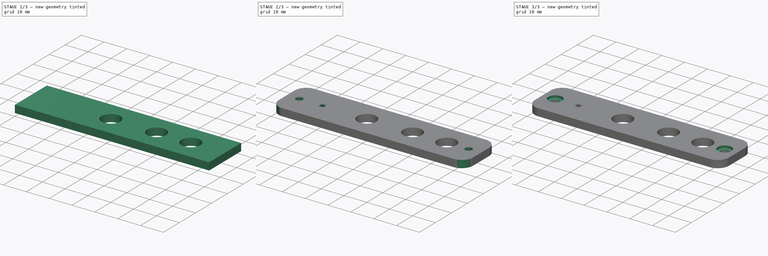
[diagram: build sequence overview — one tinted view per stage of 3, left to right]
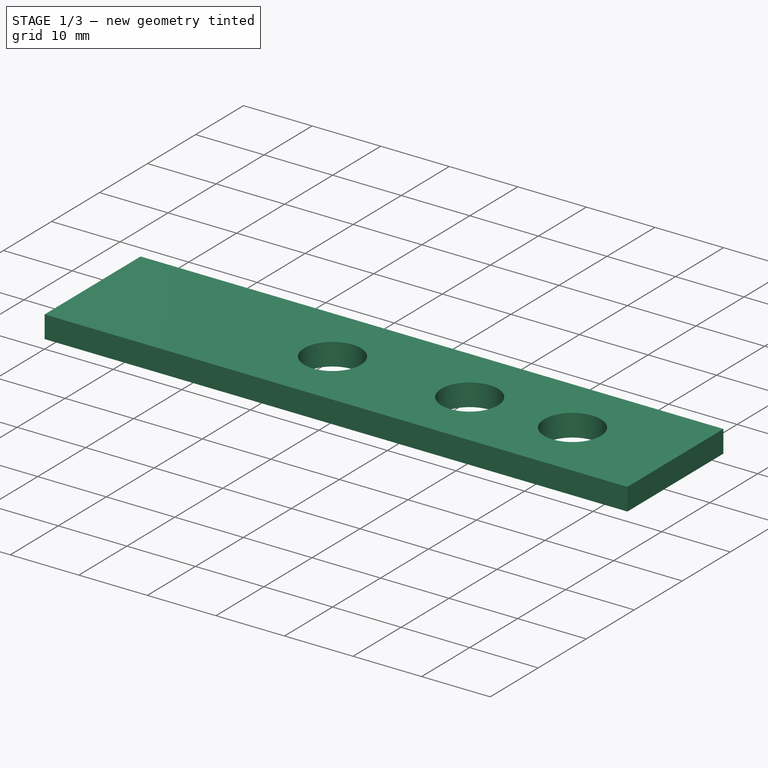
[diagram: stage 1 of 3 — iso view after this stage's code; geometry added in this stage tinted green]
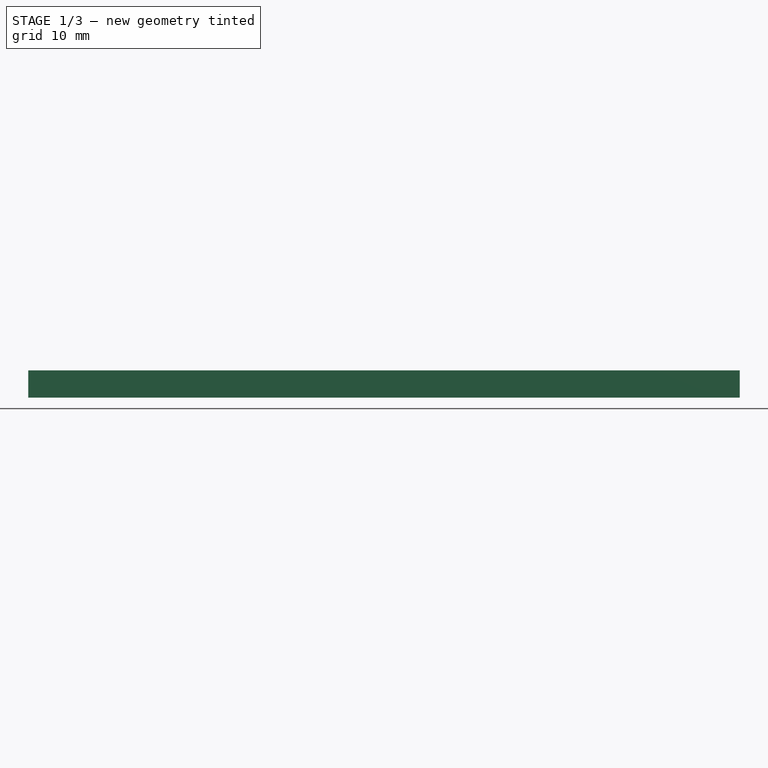
[diagram: stage 1 of 3 — front view after this stage's code; geometry added in this stage tinted green]
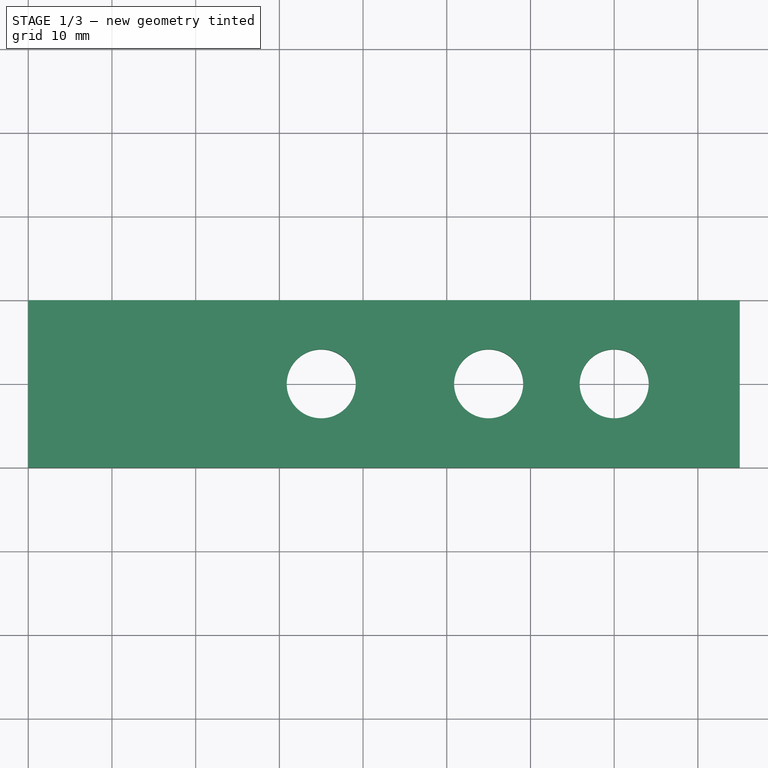
[diagram: stage 1 of 3 — top view after this stage's code; geometry added in this stage tinted green]
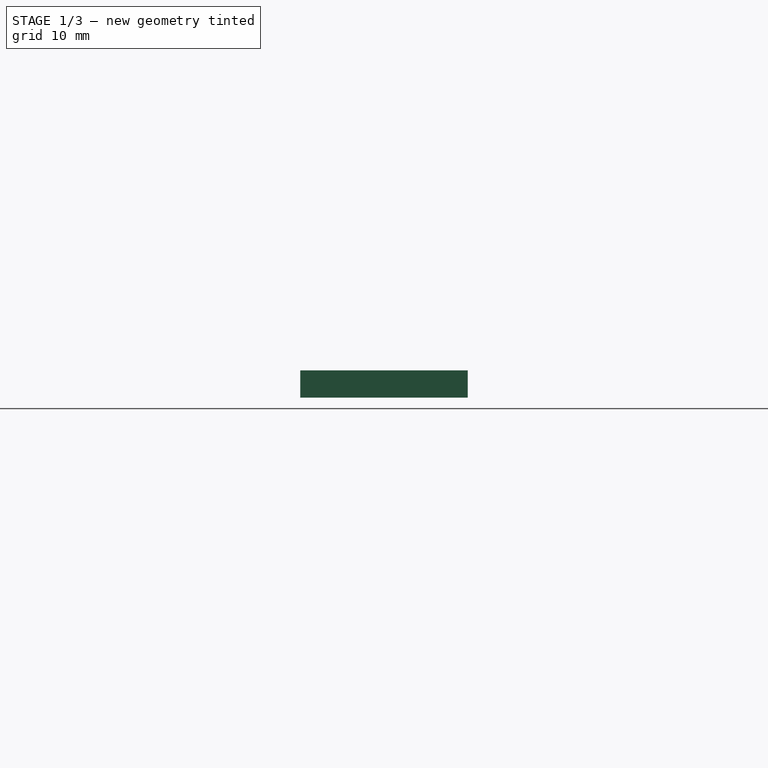
[diagram: stage 1 of 3 — right view after this stage's code; geometry added in this stage tinted green]
FCSTD DOCUMENT  (FreeCAD 1.0R38641 +468 (Git))
Label: banana plug socket holder
License: All rights reserved
LicenseURL: https://en.wikipedia.org/wiki/All_rights_reserved
objects: Sketcher::SketchObject×5, PartDesign::Plane×3, PartDesign::Pocket×3, PartDesign::Pad×2, PartDesign::Fillet×1, PartDesign::Body×1
note: 32 computed .brp shape members not serialized (recipe doc carries the construction recipe); baked Part::Feature solids carry a one-line shape summary decoded from their .brp

FEATURE [Sketcher::SketchObject] Sketch  label="Wire Socket"
  ArcFitTolerance = 1e-06
  AttachmentSupport = -> [XY_Plane]
  FullyConstrained = true
  MakeInternals = false
  MapMode = 5
  sketch-geometry (13):
    g0: LineSegment StartX=0 StartY=0 StartZ=0 EndX=65 EndY=0 EndZ=0
    g1: LineSegment StartX=65 StartY=0 StartZ=0 EndX=65 EndY=20 EndZ=0
    g2: LineSegment StartX=65 StartY=20 StartZ=0 EndX=0 EndY=20 EndZ=0
    g3: LineSegment StartX=0 StartY=20 StartZ=0 EndX=0 EndY=0 EndZ=0
    g4: LineSegment [constr] StartX=0 StartY=20 StartZ=0 EndX=65 EndY=0 EndZ=0
    g5: LineSegment [constr] StartX=65 StartY=20 StartZ=0 EndX=0 EndY=0 EndZ=0
    g6: LineSegment [constr] StartX=32.5 StartY=10 StartZ=0 EndX=65 EndY=10 EndZ=0
    g7: LineSegment [constr] StartX=32.5 StartY=10 StartZ=0 EndX=0 EndY=10 EndZ=0
    g8: Circle CenterX=15 CenterY=10 CenterZ=0 NormalX=0 NormalY=0 NormalZ=1 AngleXU=0 Radius=4.125
    g9: Circle CenterX=50 CenterY=10 CenterZ=0 NormalX=0 NormalY=0 NormalZ=1 AngleXU=0 Radius=4.125
    g10: Circle CenterX=35 CenterY=10 CenterZ=0 NormalX=0 NormalY=0 NormalZ=1 AngleXU=0 Radius=4.125
    g11: LineSegment [constr] StartX=15 StartY=10 StartZ=0 EndX=0 EndY=10 EndZ=0
    g12: LineSegment [constr] StartX=50 StartY=10 StartZ=0 EndX=65 EndY=10 EndZ=0
  constraints (32):
    c: Coincident(g0,g1)
    c: Coincident(g1,g2)
    c: Coincident(g2,g3)
    c: Coincident(g3,g0)
    c: Horizontal(g0)
    c: Horizontal(g2)
    c: Vertical(g1)
    c: Vertical(g3)
    c: Coincident(g0,g-1)
    c: Distance(g2,g2) = 65
    c: DistanceY(g1,g1) = 20
    c: Coincident(g4,g2)
    c: Coincident(g4,g0)
    c: Coincident(g5,g1)
    c: Coincident(g5,g0)
    c: Symmetric(g5,g5,g6)
    c: Symmetric(g1,g1,g6)
    c: Coincident(g7,g6)
    c: Symmetric(g3,g3,g7)
    c: PointOnObject(g8,g7)
    c: PointOnObject(g10,g6)
    c: Equal(g10,g9)
    c: Equal(g9,g8)
    c: Diameter(g8) = 8.25
    c: DistanceX(g10,g9) = 15
    c: DistanceX(g8,g10) = 20
    c: Coincident(g11,g8)
    c: Symmetric(g3,g3,g11)
    c: Coincident(g12,g9)
    c: Symmetric(g1,g1,g12)
    c: Horizontal(g12)
    c: Equal(g12,g11)
FEATURE [PartDesign::Pad] Pad
  Direction = (0,0,1)
  Length = 3.25
  Length2 = 10
  Profile = -> Sketch
  ReferenceAxis = -> Sketch [N_Axis]
  Refine = true
  Suppressed = false
  Type = 0
FEATURE [PartDesign::Plane] DatumPlane
  AttachmentSupport = -> [Pad]
  Length = 60
  MapMode = 5
  Placement = pos=(0,0,0) rot=(0.57735,-0.57735,-0.57735;2.0944rad)
  ResizeMode = 0
  Width = 60
FEATURE [Sketcher::SketchObject] Sketch001  label="Length extension"
  ArcFitTolerance = 1e-06
  AttachmentSupport = -> [DatumPlane]
  ExternalGeometry = -> [Pad]
  FullyConstrained = true
  MakeInternals = false
  MapMode = 5
  Placement = pos=(0,0,0) rot=(0.57735,-0.57735,-0.57735;2.0944rad)
  sketch-geometry (4):
    g0: LineSegment StartX=-20 StartY=3.25 StartZ=0 EndX=-20 EndY=0 EndZ=0
    g1: LineSegment StartX=-20 StartY=0 StartZ=0 EndX=0 EndY=0 EndZ=0
    g2: LineSegment StartX=0 StartY=0 StartZ=0 EndX=0 EndY=3.25 EndZ=0
    g3: LineSegment StartX=0 StartY=3.25 StartZ=0 EndX=-20 EndY=3.25 EndZ=0
  constraints (10):
    c: Coincident(g0,g1)
    c: Coincident(g1,g2)
    c: Coincident(g2,g3)
    c: Coincident(g3,g0)
    c: Vertical(g0)
    c: Vertical(g2)
    c: Horizontal(g1)
    c: Horizontal(g3)
    c: Coincident(g0,g-4)
    c: Coincident(g1,g-1)
FEATURE [PartDesign::Pad] Pad001
  BaseFeature = -> Pad
  Direction = (-1,0,0)
  Length = 20
  Length2 = 10
  Profile = -> Sketch001
  ReferenceAxis = -> Sketch001 [N_Axis]
  Refine = true
  Suppressed = false
  Type = 0
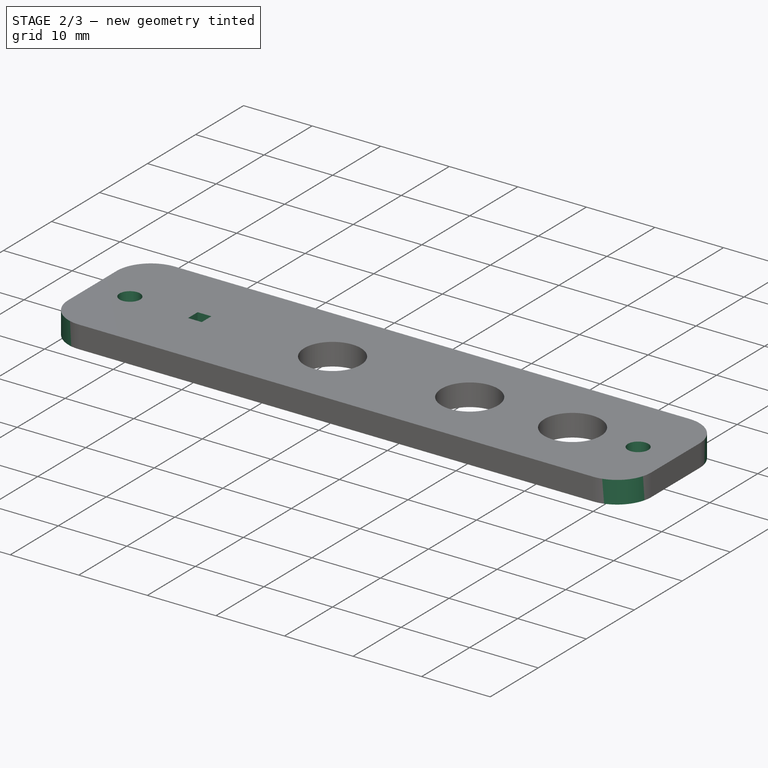
[diagram: stage 2 of 3 — iso view after this stage's code; geometry added in this stage tinted green]
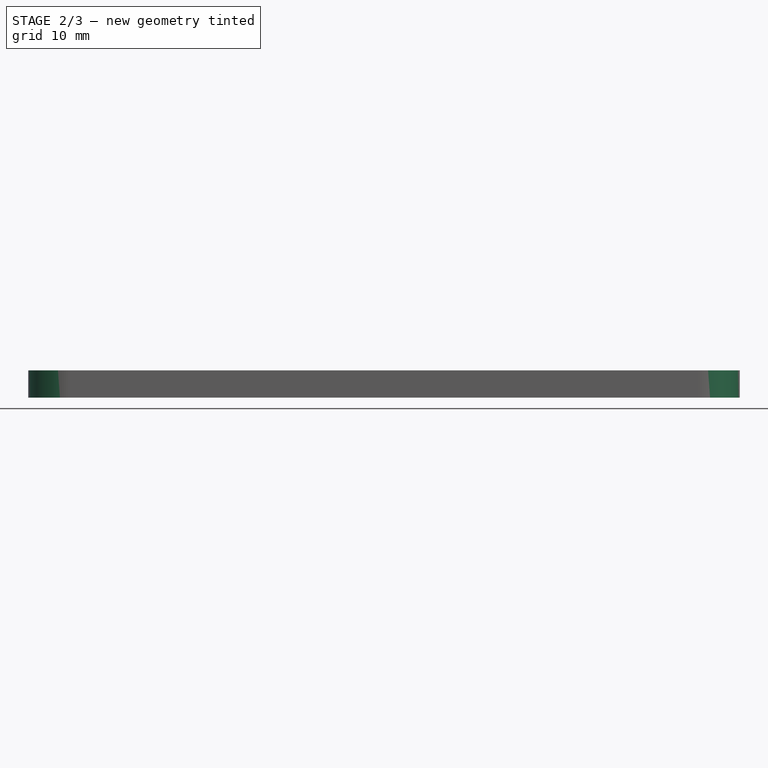
[diagram: stage 2 of 3 — front view after this stage's code; geometry added in this stage tinted green]
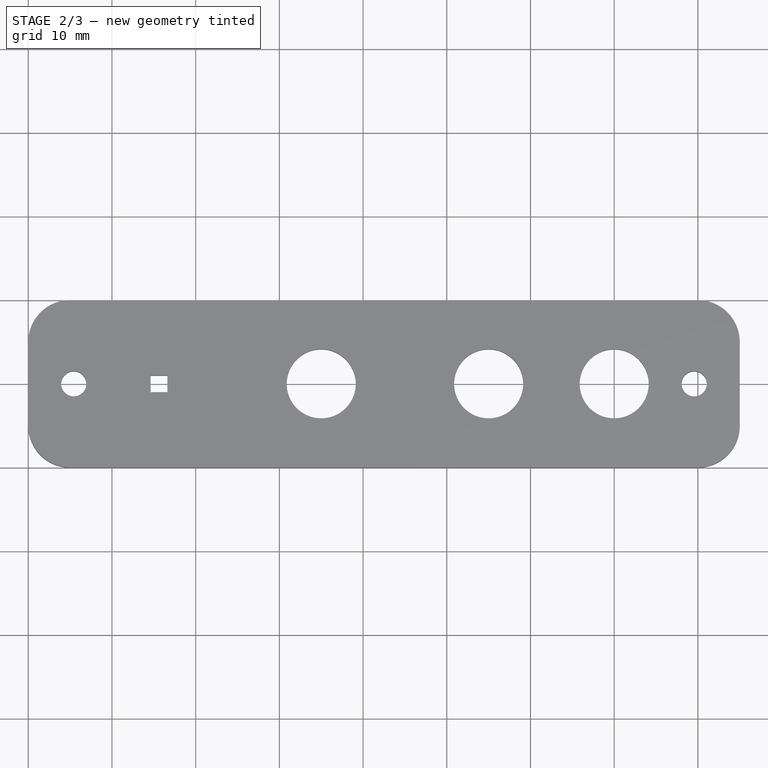
[diagram: stage 2 of 3 — top view after this stage's code; geometry added in this stage tinted green]
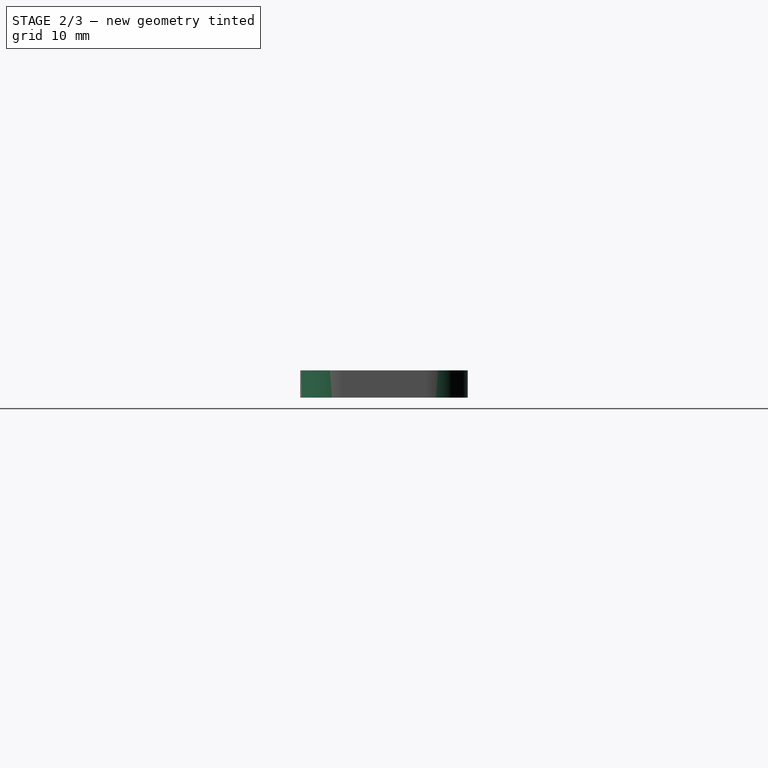
[diagram: stage 2 of 3 — right view after this stage's code; geometry added in this stage tinted green]
FEATURE [PartDesign::Plane] DatumPlane001
  AttachmentSupport = -> [Pad001]
  Length = 103.416
  MapMode = 5
  Placement = pos=(0,0,3.25) rot=(0,0,1;0rad)
  ResizeMode = 0
  Width = 63.4164
FEATURE [Sketcher::SketchObject] Sketch002  label="Buzzer, screw transverse holes"
  ArcFitTolerance = 1e-06
  AttachmentSupport = -> [DatumPlane001]
  ExternalGeometry = -> [Pad001]
  FullyConstrained = true
  MakeInternals = false
  MapMode = 5
  Placement = pos=(0,0,3.25) rot=(0,0,1;0rad)
  sketch-geometry (31):
    g0: LineSegment [constr] StartX=-20 StartY=20 StartZ=0 EndX=-20 EndY=10 EndZ=0
    g1: LineSegment [constr] StartX=15 StartY=10 StartZ=0 EndX=15 EndY=20 EndZ=0
    g2: LineSegment [constr] StartX=15 StartY=20 StartZ=0 EndX=-20 EndY=20 EndZ=0
    g3: LineSegment [constr] StartX=15 StartY=10 StartZ=0 EndX=-20 EndY=10 EndZ=0
    g4: LineSegment [constr] StartX=-20 StartY=10 StartZ=0 EndX=-20 EndY=0 EndZ=0
    g5: LineSegment [constr] StartX=-20 StartY=0 StartZ=0 EndX=15 EndY=0 EndZ=0
    g6: LineSegment [constr] StartX=15 StartY=0 StartZ=0 EndX=15 EndY=10 EndZ=0
    g7: GeomPoint [constr] X=-4.375 Y=10 Z=0
    g8: LineSegment [constr] StartX=-4.375 StartY=10 StartZ=0 EndX=15 EndY=10 EndZ=0
    g9: LineSegment [constr] StartX=-4.375 StartY=10 StartZ=0 EndX=-20 EndY=10 EndZ=0
    g10: Circle [constr] CenterX=-4.375 CenterY=10 CenterZ=0 NormalX=0 NormalY=0 NormalZ=1 AngleXU=0 Radius=4.75
    g11: Circle [constr] CenterX=15 CenterY=10 CenterZ=0 NormalX=0 NormalY=0 NormalZ=1 AngleXU=0 Radius=5.375
    g12: GeomPoint [constr] X=0.375 Y=10 Z=0
    g13: GeomPoint [constr] X=9.625 Y=10 Z=0
    g14: Circle CenterX=-14.5625 CenterY=10 CenterZ=0 NormalX=0 NormalY=0 NormalZ=1 AngleXU=0 Radius=1.5
    g15: Circle [constr] CenterX=-14.5625 CenterY=10 CenterZ=0 NormalX=0 NormalY=0 NormalZ=1 AngleXU=0 Radius=5.4375
    g16: GeomPoint [constr] X=-9.125 Y=10 Z=0
    g17: LineSegment [constr] StartX=65 StartY=20 StartZ=0 EndX=65 EndY=10 EndZ=0
    g18: LineSegment [constr] StartX=65 StartY=10 StartZ=0 EndX=65 EndY=0 EndZ=0
    g19: LineSegment [constr] StartX=65 StartY=10 StartZ=0 EndX=20.375 EndY=10 EndZ=0
    g20: GeomPoint [constr] X=59.5625 Y=10 Z=0
    g21: GeomPoint [constr] X=54.125 Y=10 Z=0
    g22: Circle [constr] CenterX=59.5625 CenterY=10 CenterZ=0 NormalX=0 NormalY=0 NormalZ=1 AngleXU=0 Radius=5.4375
    g23: Circle CenterX=59.5625 CenterY=10 CenterZ=0 NormalX=0 NormalY=0 NormalZ=1 AngleXU=0 Radius=1.5
    g24: LineSegment StartX=-5.375 StartY=9 StartZ=0 EndX=-3.375 EndY=9 EndZ=0
    g25: LineSegment StartX=-3.375 StartY=9 StartZ=0 EndX=-3.375 EndY=11 EndZ=0
    g26: LineSegment StartX=-3.375 StartY=11 StartZ=0 EndX=-5.375 EndY=11 EndZ=0
    g27: LineSegment StartX=-5.375 StartY=11 StartZ=0 EndX=-5.375 EndY=9 EndZ=0
    g28: GeomPoint [constr] X=-4.375 Y=10 Z=0
    g29: LineSegment [constr] StartX=59.5625 StartY=10 StartZ=0 EndX=65 EndY=10 EndZ=0
    g30: LineSegment [constr] StartX=-14.5625 StartY=10 StartZ=0 EndX=-20 EndY=10 EndZ=0
  constraints (73):
    c: Coincident(g1,g2)
    c: Coincident(g2,g0)
    c: Vertical(g0)
    c: Vertical(g1)
    c: Horizontal(g2)
    c: Coincident(g0,g-4)
    c: Coincident(g3,g4)
    c: Coincident(g4,g5)
    c: Coincident(g5,g6)
    c: Coincident(g6,g3)
    c: Horizontal(g3)
    c: Horizontal(g5)
    c: Vertical(g4)
    c: Vertical(g6)
    c: Coincident(g4,g-4)
    c: PointOnObject(g7,g3)
    c: Coincident(g8,g7)
    c: Coincident(g8,g1)
    c: Horizontal(g8)
    c: Coincident(g9,g7)
    c: Coincident(g9,g0)
    c: Horizontal(g9)
    c: PointOnObject(g1,g6)
    c: PointOnObject(g-5,g6)
    c: Equal(g6,g1)
    c: Diameter(g10) = 9.5
    c: Coincident(g10,g7)
    c: Diameter(g11) = 10.75
    c: Coincident(g11,g1)
    c: PointOnObject(g12,g10)
    c: PointOnObject(g12,g8)
    c: PointOnObject(g13,g11)
    c: PointOnObject(g13,g8)
    c: Diameter(g14) = 3
    c: PointOnObject(g14,g9)
    c: Coincident(g15,g14)
    c: PointOnObject(g0,g15)
    c: PointOnObject(g16,g15)
    c: PointOnObject(g16,g10)
    c: PointOnObject(g16,g8)
    c: Coincident(g17,g-6)
    c: PointOnObject(g17,g-6)
    c: Coincident(g18,g17)
    c: Coincident(g18,g-6)
    c: Coincident(g19,g17)
    c: Horizontal(g19)
    c: Equal(g17,g18)
    c: PointOnObject(g20,g19)
    c: PointOnObject(g21,g19)
    c: PointOnObject(g21,g-7)
    c: Coincident(g22,g20)
    c: PointOnObject(g17,g22)
    c: PointOnObject(g21,g22)
    c: Coincident(g23,g20)
    c: Equal(g23,g14)
    c: Coincident(g24,g25)
    c: Coincident(g25,g26)
    c: Coincident(g26,g27)
    c: Coincident(g27,g24)
    c: Horizontal(g24)
    c: Horizontal(g26)
    c: Vertical(g25)
    c: Vertical(g27)
    c: Symmetric(g26,g24,g28)
    c: Distance(g25,g27) = 2
    c: Distance(g24,g26) = 2
    c: Coincident(g28,g7)
    c: Coincident(g29,g20)
    c: Coincident(g29,g17)
    c: Coincident(g30,g14)
    c: Coincident(g30,g0)
    c: Equal(g30,g29)
    c: PointOnObject(g19,g11)
FEATURE [PartDesign::Pocket] Pocket
  BaseFeature = -> Pad001
  Direction = (0,0,-1)
  Length = 5
  Length2 = 5
  Profile = -> Sketch002
  ReferenceAxis = -> Sketch002 [N_Axis]
  Refine = true
  Suppressed = false
  Type = 0
FEATURE [PartDesign::Fillet] Fillet
  Base = -> Pocket [Edge9,Edge6,Edge1,Edge2]
  BaseFeature = -> Pocket
  Radius = 5
  Refine = true
  SupportTransform = false
  Suppressed = false
  UseAllEdges = false
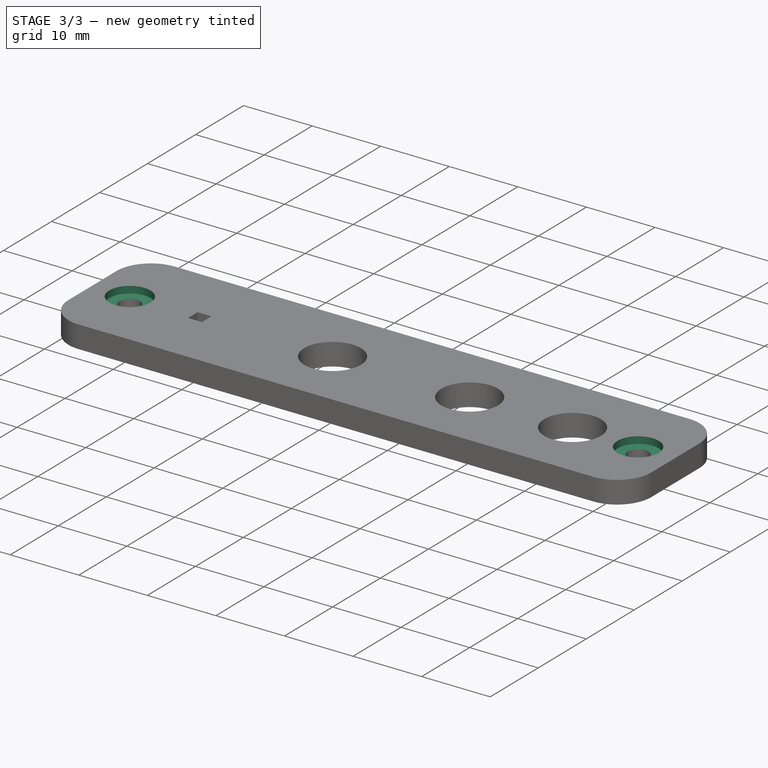
[diagram: stage 3 of 3 — iso view after this stage's code; geometry added in this stage tinted green]
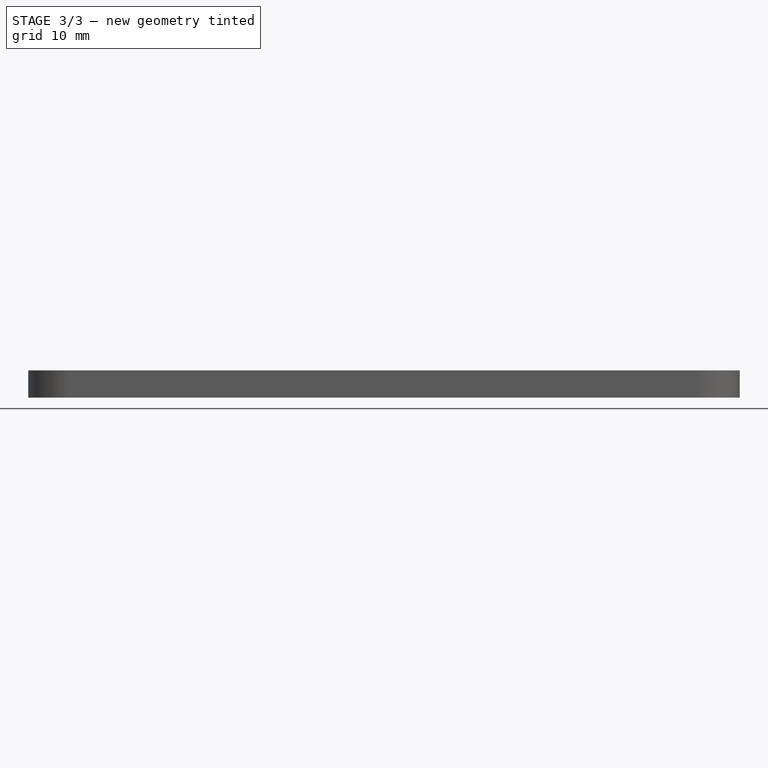
[diagram: stage 3 of 3 — front view after this stage's code; geometry added in this stage tinted green]
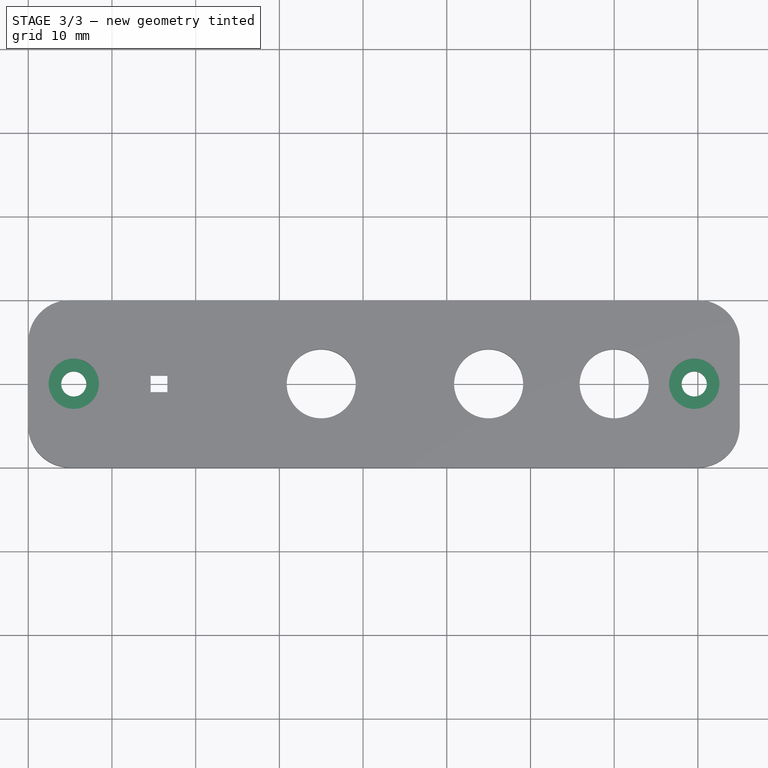
[diagram: stage 3 of 3 — top view after this stage's code; geometry added in this stage tinted green]
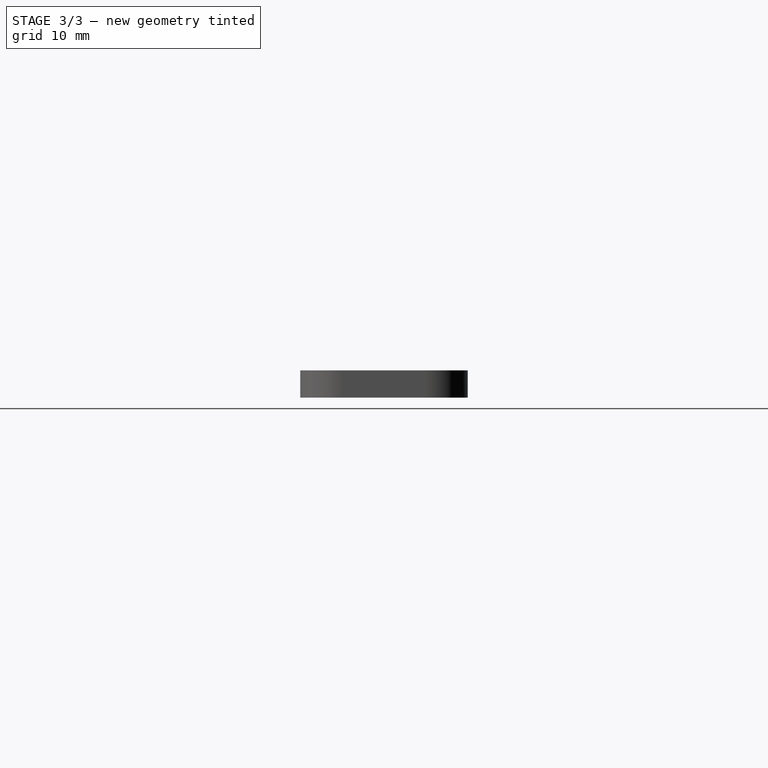
[diagram: stage 3 of 3 — right view after this stage's code; geometry added in this stage tinted green]
FEATURE [Sketcher::SketchObject] Sketch003  label="Screw insets"
  ArcFitTolerance = 1e-06
  AttachmentSupport = -> [DatumPlane001]
  ExternalGeometry = -> [Fillet]
  FullyConstrained = true
  MakeInternals = false
  MapMode = 5
  Placement = pos=(0,0,3.25) rot=(0,0,1;0rad)
  sketch-geometry (2):
    g0: Circle CenterX=-14.5625 CenterY=10 CenterZ=0 NormalX=0 NormalY=0 NormalZ=1 AngleXU=0 Radius=3
    g1: Circle CenterX=59.5625 CenterY=10 CenterZ=0 NormalX=0 NormalY=0 NormalZ=1 AngleXU=0 Radius=3
  constraints (4):
    c: Coincident(g0,g-3)
    c: Coincident(g1,g-4)
    c: Equal(g1,g0)
    c: Diameter(g0) = 6
FEATURE [PartDesign::Pocket] Pocket001
  BaseFeature = -> Fillet
  Direction = (0,0,-1)
  Length = 1
  Length2 = 5
  Profile = -> Sketch003
  ReferenceAxis = -> Sketch003 [N_Axis]
  Refine = true
  Suppressed = false
  Type = 0
FEATURE [PartDesign::Plane] DatumPlane002
  AttachmentSupport = -> [Pocket001]
  Length = 103.416
  MapMode = 5
  Placement = pos=(0,0,0) rot=(1,0,0;3.14159rad)
  ResizeMode = 0
  Width = 63.4164
FEATURE [Sketcher::SketchObject] Sketch004  label="Buzzer Inset"
  ArcFitTolerance = 1e-06
  AttachmentSupport = -> [DatumPlane002]
  ExternalGeometry = -> [Pocket001]
  FullyConstrained = true
  MakeInternals = false
  MapMode = 5
  Placement = pos=(0,0,0) rot=(1,0,0;3.14159rad)
  sketch-geometry (4):
    g0: LineSegment [constr] StartX=-3.375 StartY=-11 StartZ=0 EndX=-5.375 EndY=-9 EndZ=0
    g1: LineSegment [constr] StartX=-5.375 StartY=-11 StartZ=0 EndX=-3.375 EndY=-9 EndZ=0
    g2: GeomPoint [constr] X=-4.375 Y=-10 Z=0
    g3: Circle CenterX=-4.375 CenterY=-10 CenterZ=0 NormalX=0 NormalY=0 NormalZ=1 AngleXU=0 Radius=4.75
  constraints (8):
    c: Coincident(g0,g-6)
    c: Coincident(g0,g-4)
    c: Coincident(g1,g-5)
    c: Coincident(g1,g-6)
    c: PointOnObject(g2,g1)
    c: PointOnObject(g2,g0)
    c: Diameter(g3) = 9.5
    c: Symmetric(g0,g0,g3)
FEATURE [PartDesign::Pocket] Pocket002
  BaseFeature = -> Pocket001
  Direction = (0,0,1)
  Length = 1
  Length2 = 5
  Profile = -> Sketch004
  ReferenceAxis = -> Sketch004 [N_Axis]
  Refine = true
  Suppressed = false
  Type = 0
FEATURE [PartDesign::Body] Body
  AllowCompound = false
  Group = -> [Sketch,Pad,DatumPlane,Sketch001,Pad001,DatumPlane001,Sketch002,Pocket,Fillet,Sketch003,Pocket001,DatumPlane002,Sketch004,Pocket002]
  Origin = -> Origin
  Tip = -> Pocket002
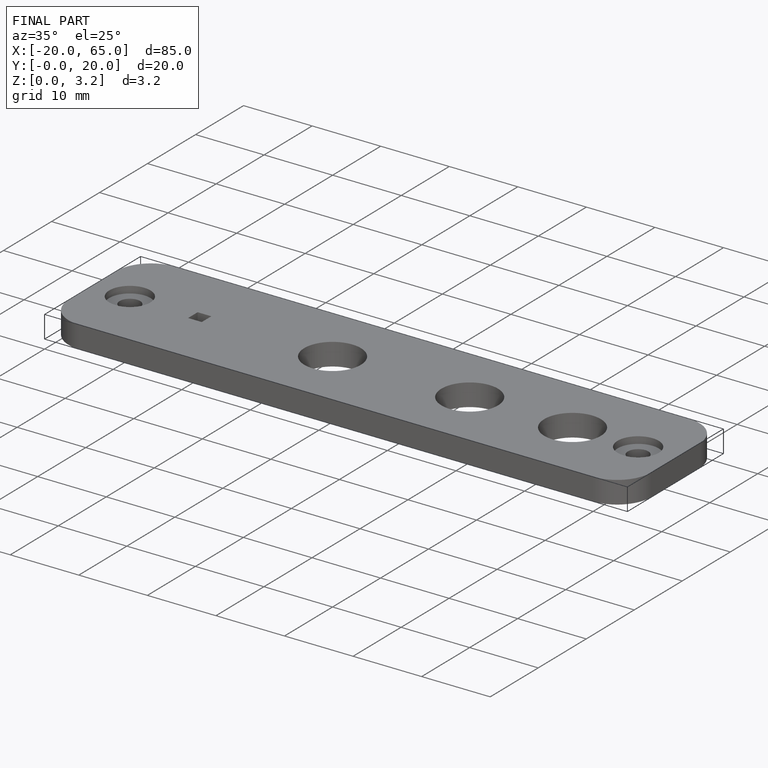
[diagram: finished part — iso view with bounding-box wireframe]
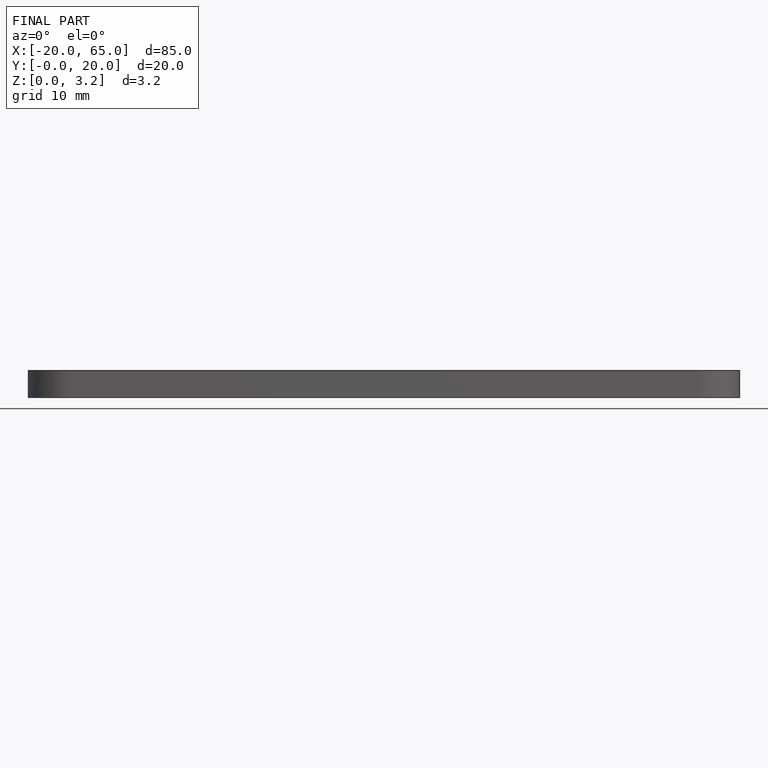
[diagram: finished part — front view with bounding-box wireframe]
